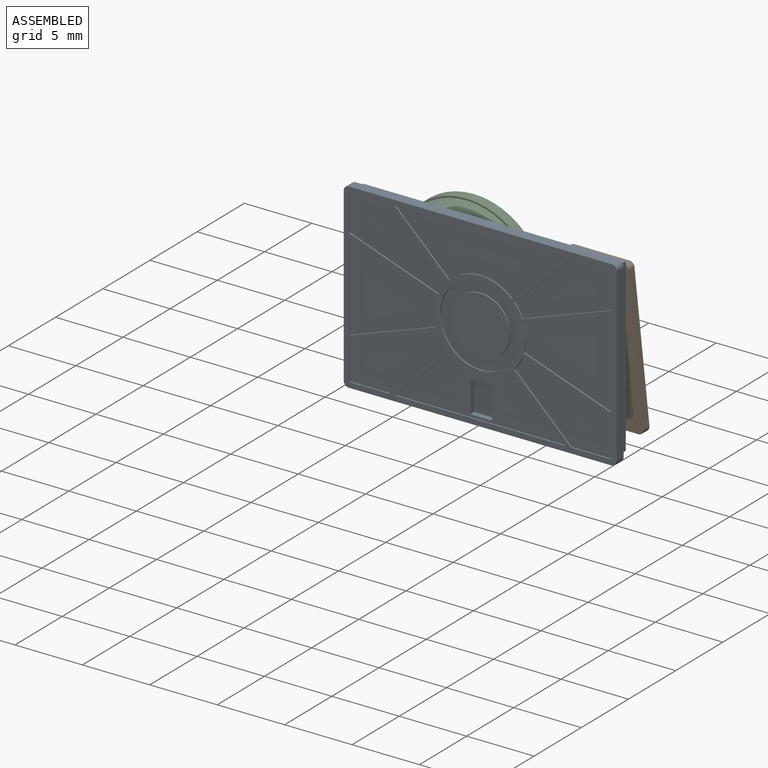
[diagram: assembled view]
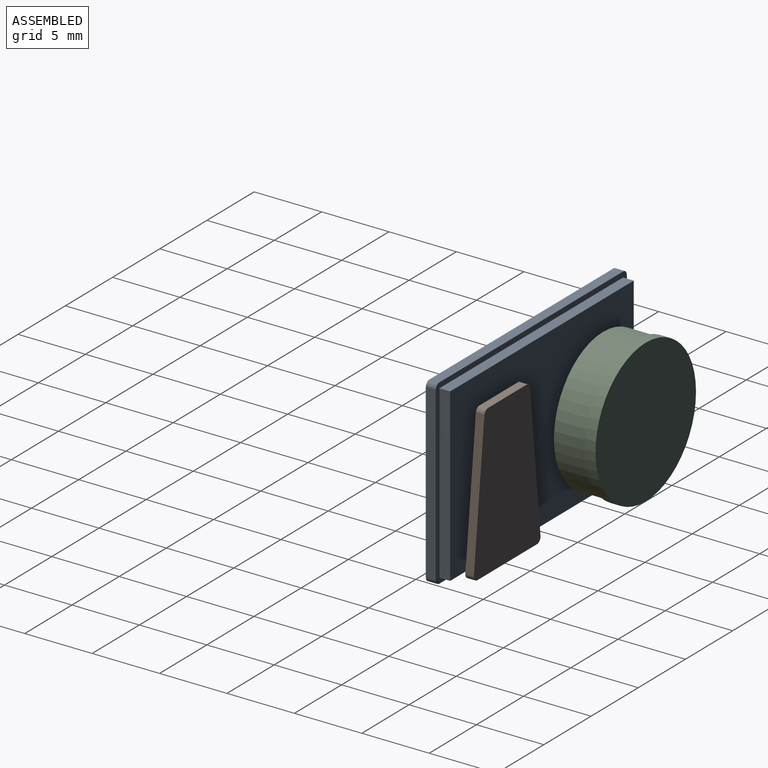
[diagram: assembled view, second angle]
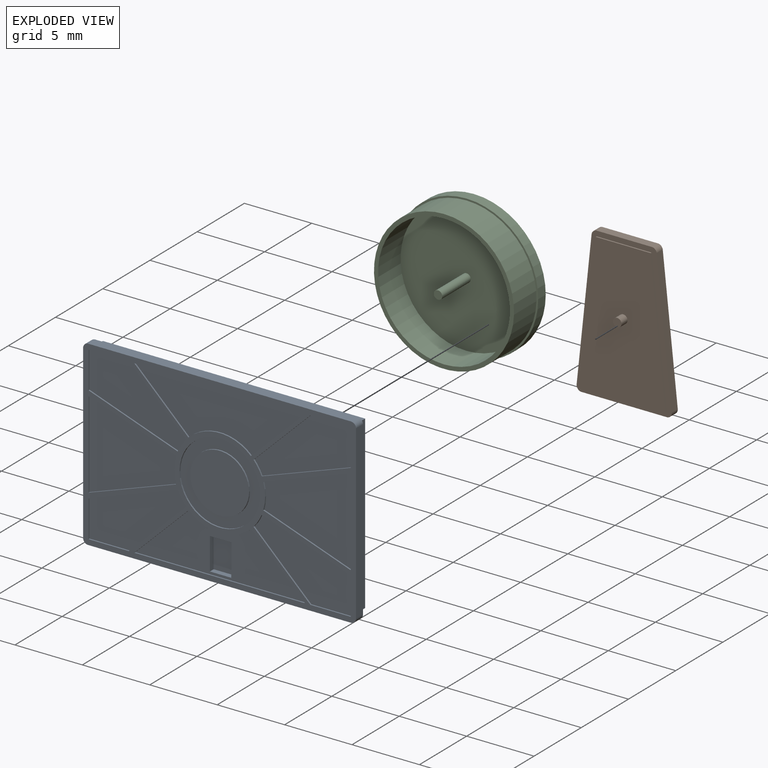
[diagram: exploded view]
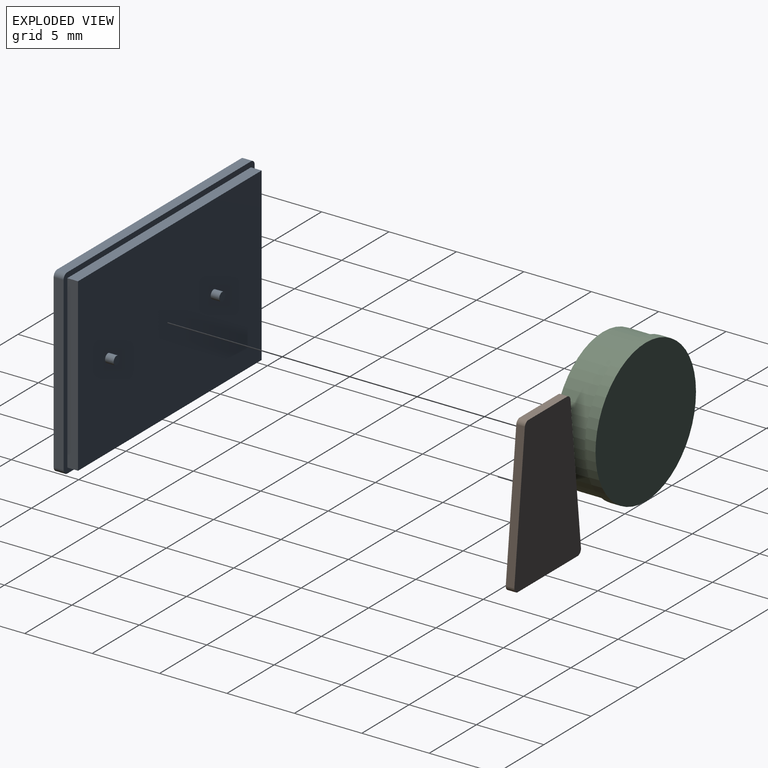
[diagram: exploded view, second angle]
ASSEMBLY  parts=3 mates=2
PART A: 80 faces, bbox 13.5x2.2x20.2 mm
  f0: plane 12.65x3.9mm, normal (0,-1,0), area 27mm2, adj f31,f32,f33,f47,f71,f72,f73,f74
  f1: plane 5.95x5.95mm, normal (0,-1,0), area 12.9mm2, adj f48,f66
  f2: plane 12.7x0.79mm, normal (0,0,-1), area 10.1mm2, adj f3,f5,f6,f15
  f3: plane 19.45x0.79mm, normal (1,0,0), area 15.4mm2, adj f2,f4,f6,f15
  f4: plane 12.7x0.79mm, normal (0,0,1), area 10.1mm2, adj f3,f5,f6,f15
  f5: plane 19.45x0.79mm, normal (-1,0,0), area 15.4mm2, adj f2,f4,f6,f15
  f6: plane 19.45x12.7mm, normal (0,1,0), area 246.3mm2, adj f2,f3,f4,f5,f76,f78
  f7: cylinder r=0.37mm len=0.74mm, axis (0,1,0), area 0.5mm2, adj f8,f14,f15,f53
  f8: plane 19.45x0.74mm, normal (-1,0,0), area 14.3mm2, adj f7,f9,f15,f53
  f9: cylinder r=0.39mm len=0.74mm, axis (0,1,0), area 0.5mm2, adj f8,f10,f15,f53
  f10: plane 12.71x0.74mm, normal (0,0,-1), area 9.4mm2, adj f9,f11,f15,f53
  f11: cylinder r=0.38mm len=0.74mm, axis (0,1,0), area 0.5mm2, adj f10,f12,f15,f53
  f12: plane 19.45x0.74mm, normal (1,0,0), area 14.3mm2, adj f11,f13,f15,f53
  f13: cylinder r=0.38mm len=0.74mm, axis (0,1,0), area 0.5mm2, adj f12,f14,f15,f53
  f14: plane 12.7x0.74mm, normal (0,0,1), area 9.4mm2, adj f7,f13,f15,f53
  f15: plane 20.24x13.5mm, normal (0,1,0), area 26mm2, adj f2,f3,f4,f5,f7,f8,f9,f10
  f16: plane 6.61x2.33mm, normal (0.94,0,0.33), area 0.7mm2, adj f17,f52,f53,f60
  f17: cylinder r=3.37mm len=0.95mm, axis (0,1,0), area 0.1mm2, adj f16,f18,f53,f60
  f18: plane 4.22x4.1mm, normal (-0.72,0,-0.7), area 0.6mm2, adj f17,f19,f53,f60
  f19: plane 2.99x0.1mm, normal (-1,0,0), area 0.3mm2, adj f18,f52,f53,f60
  f20: plane 6.61x2.33mm, normal (-0.94,0,-0.33), area 0.7mm2, adj f21,f44,f53,f59
  f21: cylinder r=3.37mm len=0.95mm, axis (0,1,0), area 0.1mm2, adj f20,f22,f53,f59
  f22: plane 4.22x4.1mm, normal (0.72,0,0.7), area 0.6mm2, adj f21,f23,f53,f59
  f23: plane 2.99x0.1mm, normal (1,0,0), area 0.3mm2, adj f22,f44,f53,f59
  f24: plane 6.49x2.29mm, normal (-0.94,0,0.33), area 0.7mm2, adj f25,f45,f53,f58
  f25: cylinder r=3.37mm len=1.89mm, axis (0,1,0), area 0.2mm2, adj f24,f26,f53,f58
  f26: plane 6.49x2.29mm, normal (0.94,0,0.33), area 0.7mm2, adj f25,f45,f53,f58
  f27: plane 4.22x4.1mm, normal (-0.72,0,0.7), area 0.6mm2, adj f28,f46,f53,f57
  f28: cylinder r=3.37mm len=0.95mm, axis (0,1,0), area 0.1mm2, adj f27,f29,f53,f57
  f29: plane 6.61x2.33mm, normal (0.94,0,-0.33), area 0.7mm2, adj f28,f30,f53,f57
  f30: plane 2.72x0.1mm, normal (0,0,-1), area 0.3mm2, adj f29,f46,f53,f57
  f31: plane 4.01x3.9mm, normal (-0.72,0,-0.7), area 0.6mm2, adj f0,f32,f47,f53
  f32: cylinder r=3.37mm len=4.63mm, axis (0,1,0), area 0.5mm2, adj f0,f31,f33,f53
  f33: plane 4.01x3.9mm, normal (-0.72,0,0.7), area 0.6mm2, adj f0,f32,f47,f53
  f34: plane 4.01x3.9mm, normal (0.72,0,0.7), area 0.6mm2, adj f35,f49,f53,f56
  f35: cylinder r=3.37mm len=4.63mm, axis (0,1,0), area 0.5mm2, adj f34,f36,f53,f56
  f36: plane 4.01x3.9mm, normal (0.72,0,-0.7), area 0.6mm2, adj f35,f49,f53,f56
  f37: plane 6.48x2.29mm, normal (0.94,0,-0.33), area 0.7mm2, adj f38,f50,f53,f55
  f38: cylinder r=3.37mm len=1.89mm, axis (0,1,0), area 0.2mm2, adj f37,f39,f53,f55
  f39: plane 6.48x2.29mm, normal (-0.94,0,-0.33), area 0.7mm2, adj f38,f50,f53,f55
  f40: plane 2.72x0.1mm, normal (0,0,1), area 0.3mm2, adj f41,f51,f53,f54
  f41: plane 2.99x0.1mm, normal (1,0,0), area 0.3mm2, adj f40,f42,f53,f54
  f42: plane 4.22x4.1mm, normal (0.72,0,-0.7), area 0.6mm2, adj f41,f43,f53,f54
  f43: cylinder r=3.37mm len=0.95mm, axis (0,1,0), area 0.1mm2, adj f42,f51,f53,f54
  f44: plane 2.72x0.1mm, normal (0,0,-1), area 0.3mm2, adj f20,f23,f53,f59
  f45: plane 6.47x0.1mm, normal (0,0,-1), area 0.7mm2, adj f24,f26,f53,f58
  f46: plane 2.99x0.1mm, normal (-1,0,0), area 0.3mm2, adj f27,f30,f53,f57
  f47: plane 12.65x0.1mm, normal (1,0,0), area 1.3mm2, adj f0,f31,f33,f53
  f48: cylinder r=2.98mm len=5.95mm, axis (0,1,0), area 1.9mm2, adj f1,f53
  f49: plane 12.65x0.1mm, normal (-1,0,0), area 1.3mm2, adj f34,f36,f53,f56
  f50: plane 6.46x0.1mm, normal (0,0,1), area 0.7mm2, adj f37,f39,f53,f55
  f51: plane 6.61x2.33mm, normal (-0.94,0,0.33), area 0.7mm2, adj f40,f43,f53,f54
  f52: plane 2.72x0.1mm, normal (0,0,1), area 0.3mm2, adj f16,f19,f53,f60
  f53: plane 20.24x13.5mm, normal (0,-1,0), area 50.9mm2, adj f7,f8,f9,f10,f11,f12,f13,f14
  f54: plane 7.2x5.05mm, normal (0,-1,0), area 19.7mm2, adj f40,f41,f42,f43,f51
  f55: plane 6.48x6.46mm, normal (0,-1,0), area 26.9mm2, adj f37,f38,f39,f50
  f56: plane 12.65x3.9mm, normal (0,-1,0), area 30.8mm2, adj f34,f35,f36,f49
  f57: plane 7.21x5.05mm, normal (0,-1,0), area 19.7mm2, adj f27,f28,f29,f30,f46
  f58: plane 6.49x6.47mm, normal (0,-1,0), area 26.9mm2, adj f24,f25,f26,f45
  f59: plane 7.21x5.05mm, normal (0,-1,0), area 19.7mm2, adj f20,f21,f22,f23,f44
  f60: plane 7.2x5.05mm, normal (0,-1,0), area 19.7mm2, adj f16,f17,f18,f19,f52
  f61: cylinder r=0.2mm len=0.1mm, axis (0,1,0), area 0mm2, adj f62,f67,f68,f70
  f62: plane 0.1x0.01mm, normal (-0.72,0,0.7), area 0mm2, adj f61,f67,f68,f70
  f63: plane 0.1x0.01mm, normal (-0.72,0,-0.7), area 0mm2, adj f64,f65,f68,f69
  f64: cylinder r=0.2mm len=0.1mm, axis (0,1,0), area 0mm2, adj f63,f65,f68,f69
  f65: plane 0.1x0.01mm, normal (0.72,0,-0.7), area 0mm2, adj f63,f64,f68,f69
  f66: cylinder r=2.18mm len=4.37mm, axis (0,1,0), area 1.4mm2, adj f1,f68
  f67: plane 0.1x0.01mm, normal (0.72,0,0.7), area 0mm2, adj f61,f62,f68,f70
  f68: plane 4.37x4.37mm, normal (0,-1,0), area 15mm2, adj f61,f62,f63,f64,f65,f66,f67
  f69: plane 0.01x0.01mm, normal (0,-1,0), area 0mm2, adj f63,f64,f65
  f70: plane 0.01x0.01mm, normal (0,-1,0), area 0mm2, adj f61,f62,f67
  f71: plane 2.38x0.4mm, normal (0,0,1), area 0.9mm2, adj f0,f72,f74,f75
  f72: plane 1.59x0.4mm, normal (-1,0,0), area 0.6mm2, adj f0,f71,f73,f75
  f73: plane 2.38x0.4mm, normal (0,0,-1), area 0.9mm2, adj f0,f72,f74,f75
  f74: plane 1.59x0.4mm, normal (1,0,0), area 0.6mm2, adj f0,f71,f73,f75
  f75: plane 2.38x1.59mm, normal (0,-1,0), area 3.8mm2, adj f71,f72,f73,f74
  f76: cylinder r=0.32mm len=0.64mm, axis (0,-1,0), area 1.3mm2, adj f6,f77
  f77: plane 0.64x0.64mm, normal (0,1,0), area 0.3mm2, adj f76
  f78: cylinder r=0.32mm len=0.64mm, axis (0,-1,0), area 1.3mm2, adj f6,f79
  f79: plane 0.64x0.64mm, normal (0,1,0), area 0.3mm2, adj f78
PART B: 17 faces, bbox 7.1x1.4x11.1 mm
  f0: plane 11.11x7.06mm, normal (0,-1,0), area 12.3mm2, adj f1,f2,f3,f4,f5,f6,f7,f8
  f1: plane 4.15x0.64mm, normal (0,0,1), area 2.6mm2, adj f0,f2,f8,f9
  f2: cylinder r=0.39mm len=0.64mm, axis (0,1,0), area 0.3mm2, adj f0,f1,f3,f9
  f3: plane 10.42x1.12mm, normal (-0.99,0,0.11), area 6.7mm2, adj f0,f2,f4,f9
  f4: cylinder r=0.38mm len=0.64mm, axis (0,1,0), area 0.4mm2, adj f0,f3,f5,f9
  f5: plane 6.38x0.64mm, normal (0,0,-1), area 4.1mm2, adj f0,f4,f6,f9
  f6: cylinder r=0.37mm len=0.64mm, axis (0,1,0), area 0.4mm2, adj f0,f5,f7,f9
  f7: plane 10.44x1.12mm, normal (0.99,0,0.11), area 6.7mm2, adj f0,f6,f8,f9
  f8: cylinder r=0.38mm len=0.64mm, axis (0,1,0), area 0.3mm2, adj f0,f1,f7,f9
  f9: plane 11.11x7.06mm, normal (0,1,0), area 66mm2, adj f1,f2,f3,f4,f5,f6,f7,f8
  f10: plane 4.08x0.1mm, normal (0,0,1), area 0.4mm2, adj f0,f11,f13,f14
  f11: plane 10.35x1.11mm, normal (-0.99,0,0.11), area 1.1mm2, adj f0,f10,f12,f14
  f12: plane 6.3x0.1mm, normal (0,0,-1), area 0.6mm2, adj f0,f11,f13,f14
  f13: plane 10.35x1.11mm, normal (0.99,0,0.11), area 1.1mm2, adj f0,f10,f12,f14
  f14: plane 10.35x6.3mm, normal (0,-1,0), area 53.4mm2, adj f10,f11,f12,f13,f15
  f15: cylinder r=0.32mm len=0.64mm, axis (0,1,0), area 1.3mm2, adj f14,f16
  f16: plane 0.64x0.64mm, normal (0,-1,0), area 0.3mm2, adj f15
PART C: 9 faces, bbox 10.6x3.8x10.6 mm
  f0: cylinder r=4.89mm len=9.78mm, axis (0,1,0), area 73.2mm2, adj f2,f6
  f1: cylinder r=5.19mm len=10.39mm, axis (0,1,0), area 77.7mm2, adj f2,f3
  f2: plane 10.39x10.39mm, normal (0,1,0), area 9.7mm2, adj f0,f1
  f3: plane 10.64x10.64mm, normal (0,1,0), area 4.2mm2, adj f1,f5
  f4: plane 10.64x10.64mm, normal (0,-1,0), area 89mm2, adj f5
  f5: cylinder r=5.32mm len=10.64mm, axis (0,1,0), area 26.5mm2, adj f3,f4
  f6: plane 9.78x9.78mm, normal (0,1,0), area 74.8mm2, adj f0,f7
  f7: cylinder r=0.32mm len=3.02mm, axis (0,-1,0), area 6mm2, adj f6,f8
  f8: plane 0.64x0.64mm, normal (0,1,0), area 0.3mm2, adj f7
PLACE A rot(axis=(0,-1,0),90deg) t=(-19.66,-2.21,18.6)mm
PLACE B t=(-22.84,-0.2,6.47)mm
PLACE C rot(axis=(1,0,0),180deg) t=(-5.54,-0.94,12.25)mm
MATE revolute C.f0 <-> A.f78  axis (0,-1,0) through (-34.03,-1.58,12.25)mm
MATE revolute A.f76 <-> B.f15  axis (0,1,0) through (-22.84,-1.58,12.25)mm
